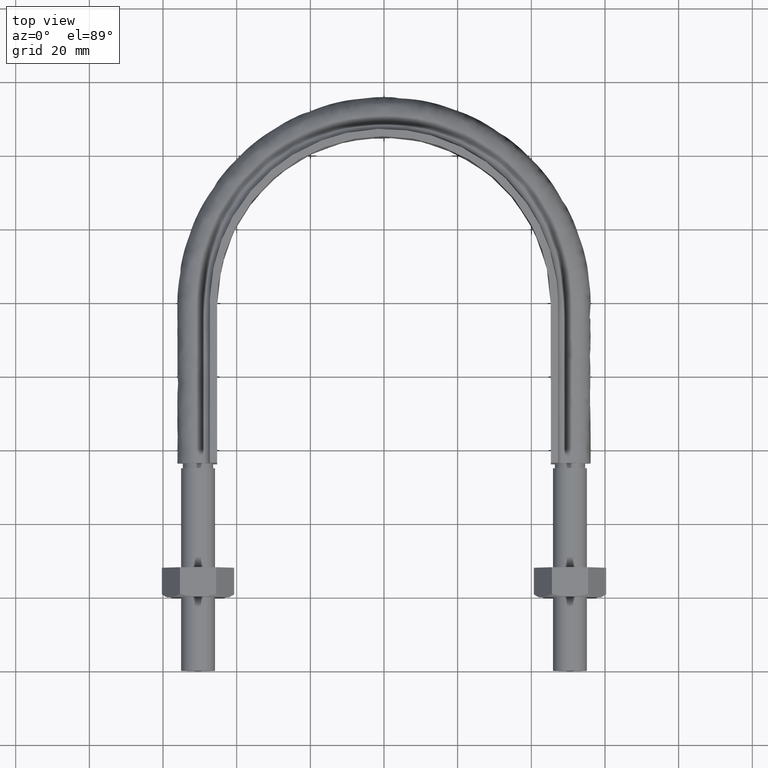
[diagram: clean part render]
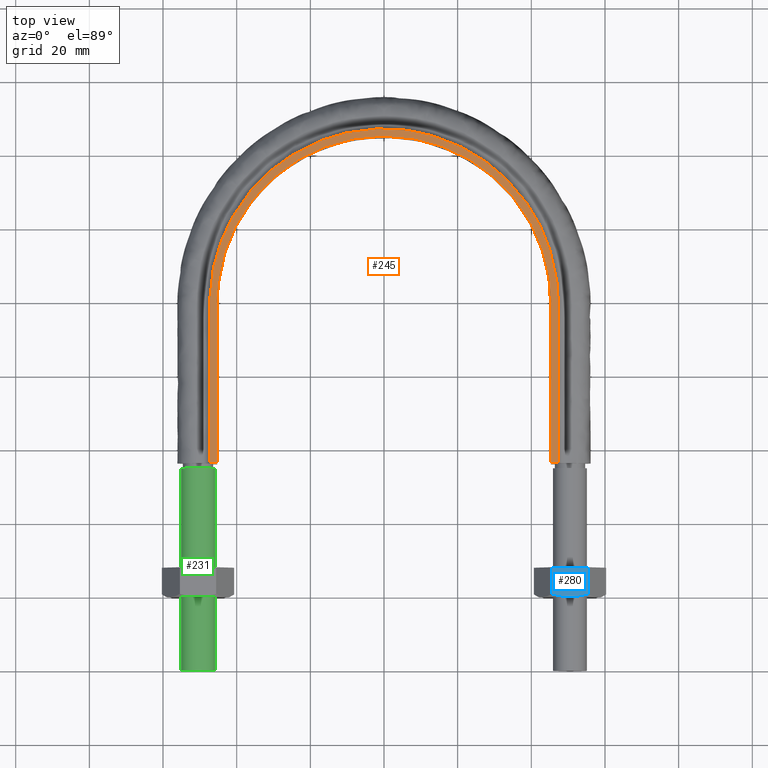
[diagram: same view with three faces highlighted in distinct colors, each labeled with its STEP entity id]
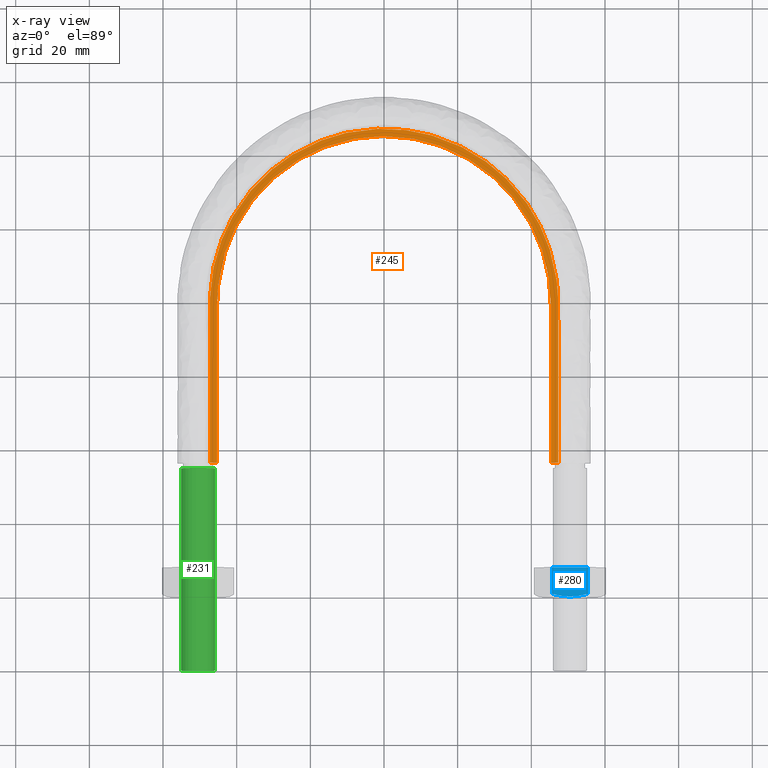
[diagram: x-ray of the same camera — body ghosted, the three highlighted faces saturated]
A machine part, top view with three faces highlighted in distinct colors.
The next image is the same camera in x-ray (body ghosted, the three faces saturated) — at least one of them is partly hidden behind the body in this view.
Their STEP definitions:

[orange] entity #245 — the highlighted planar face has unit normal (0, 0, 1).
#245 = ADVANCED_FACE( '', ( #357 ), #358, .T. );
#357 = FACE_OUTER_BOUND( '', #689, .T. );
#358 = PLANE( '', #690 );
#689 = EDGE_LOOP( '', ( #1625, #1626, #1627, #1628 ) );
#690 = AXIS2_PLACEMENT_3D( '', #1629, #1630, #1631 );
#1625 = ORIENTED_EDGE( '', *, *, #2027, .T. );
#1626 = ORIENTED_EDGE( '', *, *, #2036, .F. );
#1627 = ORIENTED_EDGE( '', *, *, #2031, .T. );
#1628 = ORIENTED_EDGE( '', *, *, #2037, .F. );
#1629 = CARTESIAN_POINT( '', ( 60.0000000000000, 166.300000000000, 12.5000000000000 ) );
#1630 = DIRECTION( '', ( 0.000000000000000, 0.000000000000000, 1.00000000000000 ) );
#1631 = DIRECTION( '', ( 1.22460635382238E-016, 1.00000000000000, 0.000000000000000 ) );
#2027 = EDGE_CURVE( '', #2202, #2199, #2203, .T. );
#2031 = EDGE_CURVE( '', #2209, #2210, #2211, .T. );
#2036 = EDGE_CURVE( '', #2209, #2199, #2218, .T. );
#2037 = EDGE_CURVE( '', #2202, #2210, #2219, .T. );
#2199 = VERTEX_POINT( '', #2500 );
#2202 = VERTEX_POINT( '', #2504 );
#2203 = LINE( '', #2505, #2506 );
#2209 = VERTEX_POINT( '', #2552 );
#2210 = VERTEX_POINT( '', #2553 );
#2211 = LINE( '', #2554, #2555 );
#2218 = B_SPLINE_CURVE_WITH_KNOTS( '', 3, ( #2609, #2610, #2611, #2612, #2613, #2614, #2615, #2616, #2617, #2618, #2619, #2620, #2621, #2622, #2623, #2624, #2625, #2626, #2627, #2628, #2629, #2630, #2631, #2632, #2633, #2634, #2635, #2636, #2637, #2638, #2639, #2640, #2641, #2642, #2643, #2644, #2645, #2646, #2647, #2648, #2649, #2650, #2651, #2652, #2653, #2654, #2655, #2656, #2657, #2658, #2659, #2660, #2661, #2662, #2663, #2664, #2665, #2666, #2667, #2668, #2669, #2670, #2671, #2672, #2673, #2674, #2675, #2676, #2677, #2678, #2679, #2680, #2681, #2682, #2683, #2684, #2685, #2686, #2687, #2688, #2689, #2690, #2691, #2692 ), .UNSPECIFIED., .F., .F., ( 4, 1, 2, 2, 2, 2, 2, 2, 2, 2, 2, 2, 2, 2, 2, 2, 2, 2, 2, 2, 2, 2, 2, 2, 2, 2, 2, 2, 2, 2, 2, 2, 2, 2, 2, 2, 2, 2, 2, 2, 2, 1, 4 ), ( 2.77555756156289E-017, 0.0287543779946536, 0.0431315669919804, 0.0440301413043133, 0.0449287156166463, 0.0467258642413122, 0.0503201614906441, 0.0575087559893078, 0.0611030532386397, 0.0629002018633056, 0.0646973504879716, 0.0718859449866353, 0.0754802422359672, 0.0790745394852990, 0.0862631339839628, 0.0898574312332946, 0.0916545798579606, 0.0934517284826265, 0.100640322981290, 0.107828917479954, 0.111423214729286, 0.115017511978618, 0.122206106477281, 0.124003255101947, 0.125800403726613, 0.129394700975945, 0.136583295474609, 0.138380444099275, 0.140177592723941, 0.143771889973273, 0.150960484471936, 0.154554781721268, 0.158149078970600, 0.165337673469264, 0.168931970718595, 0.170729119343261, 0.172526267967927, 0.179714862466591, 0.183309159715923, 0.185106308340588, 0.186903456965254, 0.201280645962582, 0.230035023957236 ), .UNSPECIFIED. );
#2219 = B_SPLINE_CURVE_WITH_KNOTS( '', 3, ( #2693, #2694, #2695, #2696, #2697, #2698, #2699, #2700, #2701, #2702, #2703, #2704, #2705, #2706, #2707, #2708 ), .UNSPECIFIED., .F., .F., ( 4, 3, 1, 1, 1, 1, 1, 1, 3, 4 ), ( 0.0686695278969959, 1.00000000000000, 2.00000000000000, 3.00000000000000, 4.00000000000000, 5.00000000000000, 6.00000000000000, 7.00000000000000, 8.00000000000000, 8.93133047210300 ), .UNSPECIFIED. );
#2500 = CARTESIAN_POINT( '', ( -45.3000000000000, 56.3000000000000, 12.5000000000000 ) );
#2504 = CARTESIAN_POINT( '', ( -47.3000000000000, 56.3000000000000, 12.5000000000000 ) );
#2505 = CARTESIAN_POINT( '', ( -60.0000000000000, 56.3000000000000, 12.5000000000000 ) );
#2506 = VECTOR( '', #3130, 1000.00000000000 );
#2552 = CARTESIAN_POINT( '', ( 45.3000000000000, 56.3000000000000, 12.5000000000000 ) );
#2553 = CARTESIAN_POINT( '', ( 47.3000000000000, 56.3000000000000, 12.5000000000000 ) );
#2554 = CARTESIAN_POINT( '', ( -60.0000000000000, 56.3000000000000, 12.5000000000000 ) );
#2555 = VECTOR( '', #3132, 1000.00000000000 );
#2609 = CARTESIAN_POINT( '', ( 45.3000000000000, 56.3000000000000, 12.5000000000000 ) );
#2610 = CARTESIAN_POINT( '', ( 45.3000000000000, 65.8848205646283, 12.5000000000000 ) );
#2611 = CARTESIAN_POINT( '', ( 45.3000000000000, 80.2620514115707, 12.5000000000000 ) );
#2612 = CARTESIAN_POINT( '', ( 45.3000000000000, 94.6392822585131, 12.5000000000000 ) );
#2613 = CARTESIAN_POINT( '', ( 45.3000000000000, 99.7312181834718, 12.5000000000000 ) );
#2614 = CARTESIAN_POINT( '', ( 45.2997760120250, 100.030743285675, 12.5000000000000 ) );
#2615 = CARTESIAN_POINT( '', ( 45.2912777717044, 100.629774066281, 12.5000000000000 ) );
#2616 = CARTESIAN_POINT( '', ( 45.2840050595566, 100.929282161215, 12.5000000000000 ) );
#2617 = CARTESIAN_POINT( '', ( 45.2531480099003, 101.827784636791, 12.5000000000000 ) );
#2618 = CARTESIAN_POINT( '', ( 45.2204957104834, 102.427200024520, 12.5000000000000 ) );
#2619 = CARTESIAN_POINT( '', ( 45.0866957945141, 104.222494949273, 12.5000000000000 ) );
#2620 = CARTESIAN_POINT( '', ( 44.9504291017170, 105.407906322015, 12.5000000000000 ) );
#2621 = CARTESIAN_POINT( '', ( 44.4061177465218, 108.931168904230, 12.5000000000000 ) );
#2622 = CARTESIAN_POINT( '', ( 43.8636822485659, 111.236321194623, 12.5000000000000 ) );
#2623 = CARTESIAN_POINT( '', ( 42.7815683609984, 114.628729902663, 12.5000000000000 ) );
#2624 = CARTESIAN_POINT( '', ( 42.3758385758423, 115.748577639201, 12.5000000000000 ) );
#2625 = CARTESIAN_POINT( '', ( 41.6971261299260, 117.411288741198, 12.5000000000000 ) );
#2626 = CARTESIAN_POINT( '', ( 41.4587485176160, 117.963522487295, 12.5000000000000 ) );
#2627 = CARTESIAN_POINT( '', ( 40.9623939009448, 119.052686028662, 12.5000000000000 ) );
#2628 = CARTESIAN_POINT( '', ( 40.7040140940422, 119.590633634306, 12.5000000000000 ) );
#2629 = CARTESIAN_POINT( '', ( 39.3618284958927, 122.247672872113, 12.5000000000000 ) );
#2630 = CARTESIAN_POINT( '', ( 38.1287732829048, 124.269715209024, 12.5000000000000 ) );
#2631 = CARTESIAN_POINT( '', ( 36.0483927303404, 127.152702706861, 12.5000000000000 ) );
#2632 = CARTESIAN_POINT( '', ( 35.3162279376427, 128.088530904417, 12.5000000000000 ) );
#2633 = CARTESIAN_POINT( '', ( 33.7729613787722, 129.908858607226, 12.5000000000000 ) );
#2634 = CARTESIAN_POINT( '', ( 32.9584983694078, 130.796352407073, 12.5000000000000 ) );
#2635 = CARTESIAN_POINT( '', ( 30.4343658146004, 133.337344556213, 12.5000000000000 ) );
#2636 = CARTESIAN_POINT( '', ( 28.6360692622386, 134.881493975360, 12.5000000000000 ) );
#2637 = CARTESIAN_POINT( '', ( 25.7668653719942, 136.974964438366, 12.5000000000000 ) );
#2638 = CARTESIAN_POINT( '', ( 24.7819445161321, 137.635801019642, 12.5000000000000 ) );
#2639 = CARTESIAN_POINT( '', ( 23.2616146962020, 138.571356100425, 12.5000000000000 ) );
#2640 = CARTESIAN_POINT( '', ( 22.7476691870376, 138.873910471946, 12.5000000000000 ) );
#2641 = CARTESIAN_POINT( '', ( 21.7052773821732, 139.460213200769, 12.5000000000000 ) );
#2642 = CARTESIAN_POINT( '', ( 21.1756556167052, 139.744537298346, 12.5000000000000 ) );
#2643 = CARTESIAN_POINT( '', ( 18.5103111801554, 141.108501344270, 12.5000000000000 ) );
#2644 = CARTESIAN_POINT( '', ( 16.3185331092020, 142.020394560135, 12.5000000000000 ) );
#2645 = CARTESIAN_POINT( '', ( 11.8189661583873, 143.494646423883, 12.5000000000000 ) );
#2646 = CARTESIAN_POINT( '', ( 9.51076198777615, 144.055753822214, 12.5000000000000 ) );
#2647 = CARTESIAN_POINT( '', ( 5.95662532797857, 144.620734661634, 12.5000000000000 ) );
#2648 = CARTESIAN_POINT( '', ( 4.76788785050952, 144.761147485507, 12.5000000000000 ) );
#2649 = CARTESIAN_POINT( '', ( 2.39647070391247, 144.947851083060, 12.5000000000000 ) );
#2650 = CARTESIAN_POINT( '', ( 1.21153117527855, 144.994499013257, 12.5000000000000 ) );
#2651 = CARTESIAN_POINT( '', ( -2.34101805316255, 144.996625356462, 12.5000000000000 ) );
#2652 = CARTESIAN_POINT( '', ( -4.70637779815009, 144.815464639074, 12.5000000000000 ) );
#2653 = CARTESIAN_POINT( '', ( -7.65915858277232, 144.351020241084, 12.5000000000000 ) );
#2654 = CARTESIAN_POINT( '', ( -8.25083455194669, 144.245862246466, 12.5000000000000 ) );
#2655 = CARTESIAN_POINT( '', ( -9.42653190172399, 144.012409776832, 12.5000000000000 ) );
#2656 = CARTESIAN_POINT( '', ( -10.0101476162836, 143.884250803394, 12.5000000000000 ) );
#2657 = CARTESIAN_POINT( '', ( -11.7484468334342, 143.465883377835, 12.5000000000000 ) );
#2658 = CARTESIAN_POINT( '', ( -12.8906527223969, 143.141974327520, 12.5000000000000 ) );
#2659 = CARTESIAN_POINT( '', ( -16.2689101217008, 142.039631660257, 12.5000000000000 ) );
#2660 = CARTESIAN_POINT( '', ( -18.4569925447982, 141.131639060066, 12.5000000000000 ) );
#2661 = CARTESIAN_POINT( '', ( -21.1113012403399, 139.778432115202, 12.5000000000000 ) );
#2662 = CARTESIAN_POINT( '', ( -21.6380918925233, 139.496795189040, 12.5000000000000 ) );
#2663 = CARTESIAN_POINT( '', ( -22.6833837807200, 138.911132577781, 12.5000000000000 ) );
#2664 = CARTESIAN_POINT( '', ( -23.2017061819432, 138.607128404409, 12.5000000000000 ) );
#2665 = CARTESIAN_POINT( '', ( -24.7303471350012, 137.669564342871, 12.5000000000000 ) );
#2666 = CARTESIAN_POINT( '', ( -25.7191011998732, 137.007938274698, 12.5000000000000 ) );
#2667 = CARTESIAN_POINT( '', ( -28.5955069273408, 134.914712609781, 12.5000000000000 ) );
#2668 = CARTESIAN_POINT( '', ( -30.3928386158799, 133.374206663575, 12.5000000000000 ) );
#2669 = CARTESIAN_POINT( '', ( -32.9098802473355, 130.847665641424, 12.5000000000000 ) );
#2670 = CARTESIAN_POINT( '', ( -33.7201063858691, 129.968144324298, 12.5000000000000 ) );
#2671 = CARTESIAN_POINT( '', ( -35.2745676507393, 128.140548074671, 12.5000000000000 ) );
#2672 = CARTESIAN_POINT( '', ( -36.0108033379542, 127.202093103808, 12.5000000000000 ) );
#2673 = CARTESIAN_POINT( '', ( -38.0999731742671, 124.314831254988, 12.5000000000000 ) );
#2674 = CARTESIAN_POINT( '', ( -39.3343184899537, 122.294697861215, 12.5000000000000 ) );
#2675 = CARTESIAN_POINT( '', ( -40.9440306770637, 119.119061107137, 12.5000000000000 ) );
#2676 = CARTESIAN_POINT( '', ( -41.4398476877741, 118.036003764877, 12.5000000000000 ) );
#2677 = CARTESIAN_POINT( '', ( -42.1215319712500, 116.374102391935, 12.5000000000000 ) );
#2678 = CARTESIAN_POINT( '', ( -42.3385970417913, 115.813283805220, 12.5000000000000 ) );
#2679 = CARTESIAN_POINT( '', ( -42.7483267135284, 114.689073533850, 12.5000000000000 ) );
#2680 = CARTESIAN_POINT( '', ( -42.9414928116361, 114.124536114339, 12.5000000000000 ) );
#2681 = CARTESIAN_POINT( '', ( -43.8499727665167, 111.289925270555, 12.5000000000000 ) );
#2682 = CARTESIAN_POINT( '', ( -44.3947073189255, 108.984386713932, 12.5000000000000 ) );
#2683 = CARTESIAN_POINT( '', ( -44.9423619636432, 105.470058132087, 12.5000000000000 ) );
#2684 = CARTESIAN_POINT( '', ( -45.0797192826280, 104.289218942135, 12.5000000000000 ) );
#2685 = CARTESIAN_POINT( '', ( -45.2157289936545, 102.503401000383, 12.5000000000000 ) );
#2686 = CARTESIAN_POINT( '', ( -45.2493799141445, 101.905563911382, 12.5000000000000 ) );
#2687 = CARTESIAN_POINT( '', ( -45.2926573150339, 100.705446197623, 12.5000000000000 ) );
#2688 = CARTESIAN_POINT( '', ( -45.3000000000000, 100.105377557368, 12.5000000000000 ) );
#2689 = CARTESIAN_POINT( '', ( -45.3000000000000, 94.7047145708432, 12.5000000000000 ) );
#2690 = CARTESIAN_POINT( '', ( -45.3000000000000, 80.3029466067769, 12.5000000000000 ) );
#2691 = CARTESIAN_POINT( '', ( -45.3000000000000, 65.9011786427107, 12.5000000000000 ) );
#2692 = CARTESIAN_POINT( '', ( -45.3000000000000, 56.3000000000001, 12.5000000000000 ) );
#2693 = CARTESIAN_POINT( '', ( -47.3000000000000, 56.3000000000000, 12.5000000000000 ) );
#2694 = CARTESIAN_POINT( '', ( -47.3000000000000, 70.7666666666667, 12.5000000000000 ) );
#2695 = CARTESIAN_POINT( '', ( -47.3000000000000, 85.2333333333333, 12.5000000000000 ) );
#2696 = CARTESIAN_POINT( '', ( -47.3000000000000, 99.7000000000000, 12.5000000000000 ) );
#2697 = CARTESIAN_POINT( '', ( -47.3000000000000, 106.766118839385, 12.5000000000000 ) );
#2698 = CARTESIAN_POINT( '', ( -44.0706150865366, 120.927141121989, 12.5000000000000 ) );
#2699 = CARTESIAN_POINT( '', ( -30.4978119078285, 137.942032975526, 12.5000000000000 ) );
#2700 = CARTESIAN_POINT( '', ( -10.8845430496578, 147.388501700335, 12.5000000000000 ) );
#2701 = CARTESIAN_POINT( '', ( 10.8845430496579, 147.388501700335, 12.5000000000000 ) );
#2702 = CARTESIAN_POINT( '', ( 30.4978119078286, 137.942032975526, 12.5000000000000 ) );
#2703 = CARTESIAN_POINT( '', ( 44.0706150865366, 120.927141121989, 12.5000000000000 ) );
#2704 = CARTESIAN_POINT( '', ( 47.3000000000000, 106.766118839385, 12.5000000000000 ) );
#2705 = CARTESIAN_POINT( '', ( 47.3000000000000, 99.7000000000000, 12.5000000000000 ) );
#2706 = CARTESIAN_POINT( '', ( 47.3000000000000, 85.2333333333333, 12.5000000000000 ) );
#2707 = CARTESIAN_POINT( '', ( 47.3000000000000, 70.7666666666667, 12.5000000000000 ) );
#2708 = CARTESIAN_POINT( '', ( 47.3000000000000, 56.3000000000000, 12.5000000000000 ) );
#3130 = DIRECTION( '', ( 1.00000000000000, -1.22460635382238E-016, 0.000000000000000 ) );
#3132 = DIRECTION( '', ( 1.00000000000000, -1.22460635382238E-016, 0.000000000000000 ) );

[blue] entity #280 — the highlighted planar face has unit normal (-0, 0, -1).
#280 = ADVANCED_FACE( '', ( #435 ), #436, .F. );
#435 = FACE_OUTER_BOUND( '', #1421, .T. );
#436 = PLANE( '', #1422 );
#1421 = EDGE_LOOP( '', ( #1888, #1889, #1890, #1891, #1892 ) );
#1422 = AXIS2_PLACEMENT_3D( '', #1893, #1894, #1895 );
#1888 = ORIENTED_EDGE( '', *, *, #2122, .F. );
#1889 = ORIENTED_EDGE( '', *, *, #2127, .F. );
#1890 = ORIENTED_EDGE( '', *, *, #2121, .F. );
#1891 = ORIENTED_EDGE( '', *, *, #2118, .F. );
#1892 = ORIENTED_EDGE( '', *, *, #2128, .F. );
#1893 = CARTESIAN_POINT( '', ( 45.5925227118882, 28.0000000000000, 8.50000000000000 ) );
#1894 = DIRECTION( '', ( -1.11022302462516E-016, 6.12303176911189E-017, -1.00000000000000 ) );
#1895 = DIRECTION( '', ( -1.00000000000000, 2.44921270764475E-016, 1.11022302462516E-016 ) );
#2118 = EDGE_CURVE( '', #2356, #2338, #2358, .T. );
#2121 = EDGE_CURVE( '', #2338, #2359, #2363, .F. );
#2122 = EDGE_CURVE( '', #2316, #2364, #2365, .T. );
#2127 = EDGE_CURVE( '', #2359, #2316, #2371, .T. );
#2128 = EDGE_CURVE( '', #2364, #2356, #2372, .T. );
#2316 = VERTEX_POINT( '', #2918 );
#2338 = VERTEX_POINT( '', #2955 );
#2356 = VERTEX_POINT( '', #2977 );
#2358 = LINE( '', #2979, #2980 );
#2359 = VERTEX_POINT( '', #2981 );
#2363 = LINE( '', #2986, #2987 );
#2364 = VERTEX_POINT( '', #2988 );
#2365 = B_SPLINE_CURVE_WITH_KNOTS( '', 3, ( #2989, #2990, #2991, #2992, #2993, #2994, #2995, #2996 ), .UNSPECIFIED., .F., .F., ( 4, 2, 2, 4 ), ( 0.00493529902949373, 0.00616408349151779, 0.00739286795354186, 0.00985043687758999 ), .UNSPECIFIED. );
#2371 = B_SPLINE_CURVE_WITH_KNOTS( '', 3, ( #3013, #3014, #3015, #3016, #3017, #3018 ), .UNSPECIFIED., .F., .F., ( 4, 2, 4 ), ( 7.17194508352321E-007, 0.00246800811200104, 0.00493529902949373 ), .UNSPECIFIED. );
#2372 = LINE( '', #3019, #3020 );
#2918 = CARTESIAN_POINT( '', ( 50.5000000000000, 20.0000000000000, 8.50000000000000 ) );
#2955 = CARTESIAN_POINT( '', ( 55.3774993593029, 28.0000000000000, 8.50000000000000 ) );
#2977 = CARTESIAN_POINT( '', ( 45.6225006406971, 28.0000000000000, 8.50000000000000 ) );
#2979 = CARTESIAN_POINT( '', ( 45.6000000000000, 28.0000000000000, 8.50000000000000 ) );
#2980 = VECTOR( '', #3274, 1000.00000000000 );
#2981 = CARTESIAN_POINT( '', ( 55.3774993593029, 20.7505553499465, 8.50000000000000 ) );
#2986 = CARTESIAN_POINT( '', ( 55.3774993593029, 28.0000000000000, 8.50000000000000 ) );
#2987 = VECTOR( '', #3279, 1000.00000000000 );
#2988 = CARTESIAN_POINT( '', ( 45.6225006406971, 20.7505553499465, 8.50000000000000 ) );
#2989 = CARTESIAN_POINT( '', ( 50.5000000000000, 20.0000000000000, 8.50000000000000 ) );
#2990 = CARTESIAN_POINT( '', ( 50.0862903722491, 20.0000000000000, 8.50000000000000 ) );
#2991 = CARTESIAN_POINT( '', ( 49.6705131783975, 20.0177112141220, 8.50000000000000 ) );
#2992 = CARTESIAN_POINT( '', ( 48.8480009983425, 20.0863020976799, 8.50000000000000 ) );
#2993 = CARTESIAN_POINT( '', ( 48.4394788820032, 20.1371114863339, 8.50000000000000 ) );
#2994 = CARTESIAN_POINT( '', ( 47.2211323152193, 20.3331491064655, 8.50000000000000 ) );
#2995 = CARTESIAN_POINT( '', ( 46.4185008687927, 20.5218250443850, 8.50000000000000 ) );
#2996 = CARTESIAN_POINT( '', ( 45.6225006406971, 20.7505553499465, 8.50000000000000 ) );
#3013 = CARTESIAN_POINT( '', ( 55.3774993593029, 20.7505553499465, 8.50000000000000 ) );
#3014 = CARTESIAN_POINT( '', ( 54.5793958257588, 20.5212206605155, 8.50000000000000 ) );
#3015 = CARTESIAN_POINT( '', ( 53.7755276393733, 20.3324529479805, 8.50000000000000 ) );
#3016 = CARTESIAN_POINT( '', ( 52.1512367166361, 20.0714150925759, 8.50000000000000 ) );
#3017 = CARTESIAN_POINT( '', ( 51.3306924758373, 20.0000000000000, 8.50000000000000 ) );
#3018 = CARTESIAN_POINT( '', ( 50.5000000000000, 20.0000000000000, 8.50000000000000 ) );
#3019 = CARTESIAN_POINT( '', ( 45.6225006406971, 28.0000000000000, 8.50000000000000 ) );
#3020 = VECTOR( '', #3284, 1000.00000000000 );
#3274 = DIRECTION( '', ( 1.00000000000000, -2.44921270764475E-016, -1.11022302462516E-016 ) );
#3279 = DIRECTION( '', ( 2.44921270764475E-016, 1.00000000000000, 6.12303176911189E-017 ) );
#3284 = DIRECTION( '', ( 2.44921270764475E-016, 1.00000000000000, 6.12303176911189E-017 ) );

[green] entity #231 — the highlighted cylindrical surface (bore or boss wall) has radius 4.6 mm, axis along (0, 1, 0).
#231 = ADVANCED_FACE( '', ( #325, #326 ), #327, .T. );
#325 = FACE_OUTER_BOUND( '', #656, .T. );
#326 = FACE_OUTER_BOUND( '', #657, .T. );
#327 = CYLINDRICAL_SURFACE( '', #658, 4.60000000000000 );
#656 = EDGE_LOOP( '', ( #1534 ) );
#657 = EDGE_LOOP( '', ( #1535 ) );
#658 = AXIS2_PLACEMENT_3D( '', #1536, #1537, #1538 );
#1534 = ORIENTED_EDGE( '', *, *, #2023, .T. );
#1535 = ORIENTED_EDGE( '', *, *, #2024, .F. );
#1536 = CARTESIAN_POINT( '', ( -50.5000000000000, 55.0000000000000, 3.42277475893355E-015 ) );
#1537 = DIRECTION( '', ( 2.44921270764475E-016, 1.00000000000000, 6.12303176911189E-017 ) );
#1538 = DIRECTION( '', ( 1.00000000000000, -2.44921270764475E-016, -7.49830360911069E-033 ) );
#2023 = EDGE_CURVE( '', #2193, #2193, #2194, .T. );
#2024 = EDGE_CURVE( '', #2195, #2195, #2196, .T. );
#2193 = VERTEX_POINT( '', #2485 );
#2194 = CIRCLE( '', #2486, 4.60000000000000 );
#2195 = VERTEX_POINT( '', #2487 );
#2196 = CIRCLE( '', #2488, 4.60000000000000 );
#2485 = CARTESIAN_POINT( '', ( -45.9000000000000, 55.0000000000000, 3.42277475893355E-015 ) );
#2486 = AXIS2_PLACEMENT_3D( '', #3123, #3124, #3125 );
#2487 = CARTESIAN_POINT( '', ( -45.9000000000000, 1.12418863280894E-014, 5.51072859220073E-017 ) );
#2488 = AXIS2_PLACEMENT_3D( '', #3126, #3127, #3128 );
#3123 = CARTESIAN_POINT( '', ( -50.5000000000000, 55.0000000000000, 3.42277475893355E-015 ) );
#3124 = DIRECTION( '', ( -2.44921270764475E-016, -1.00000000000000, -6.12303176911189E-017 ) );
#3125 = DIRECTION( '', ( 1.00000000000000, -2.44921270764475E-016, -1.01150562509412E-032 ) );
#3126 = CARTESIAN_POINT( '', ( -50.5000000000000, 1.23685241736060E-014, 5.51072859220074E-017 ) );
#3127 = DIRECTION( '', ( -2.44921270764475E-016, -1.00000000000000, -6.12303176911189E-017 ) );
#3128 = DIRECTION( '', ( 1.00000000000000, -2.44921270764475E-016, -1.01150562509412E-032 ) );